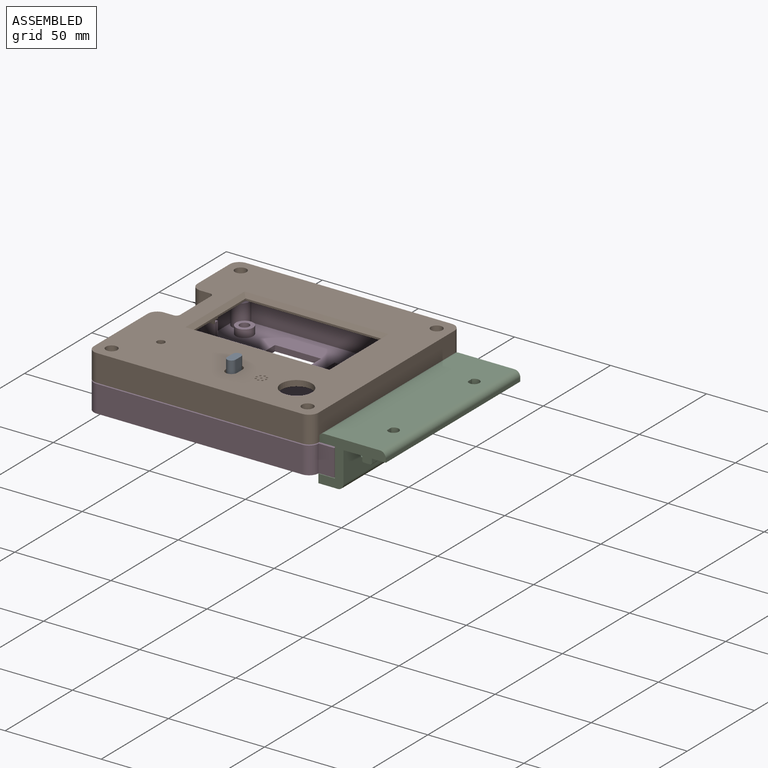
[diagram: assembled view]
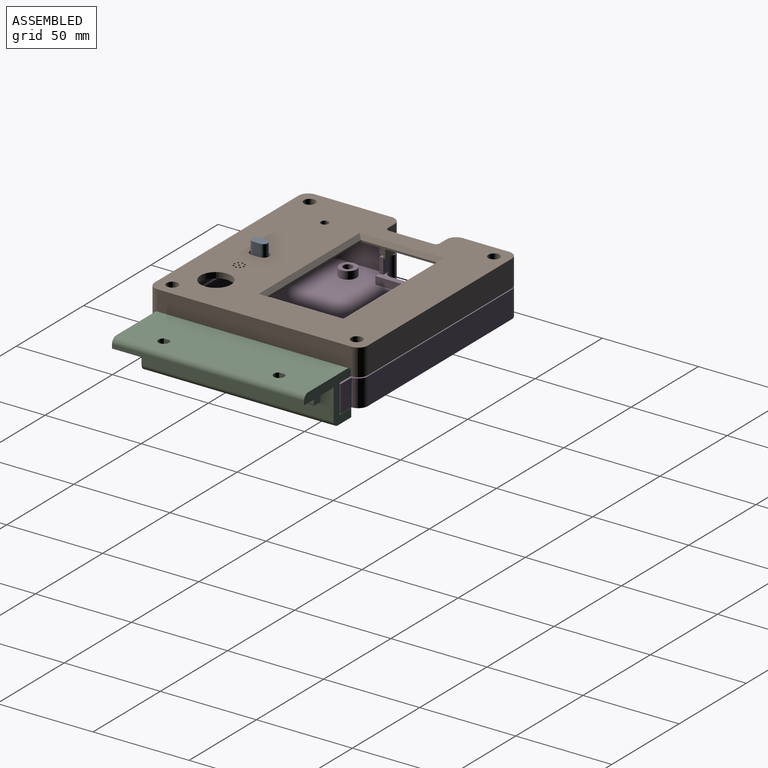
[diagram: assembled view, second angle]
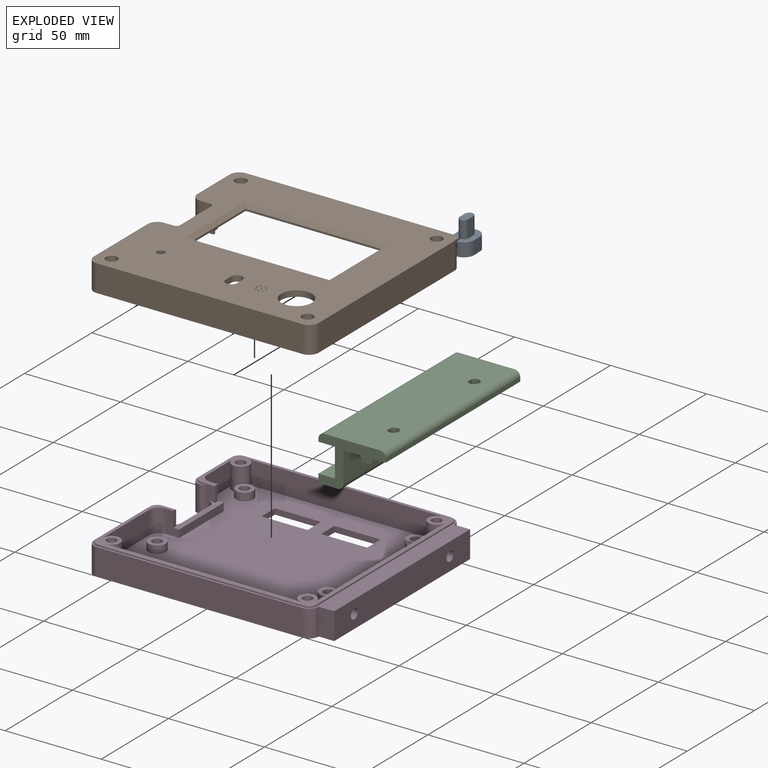
[diagram: exploded view]
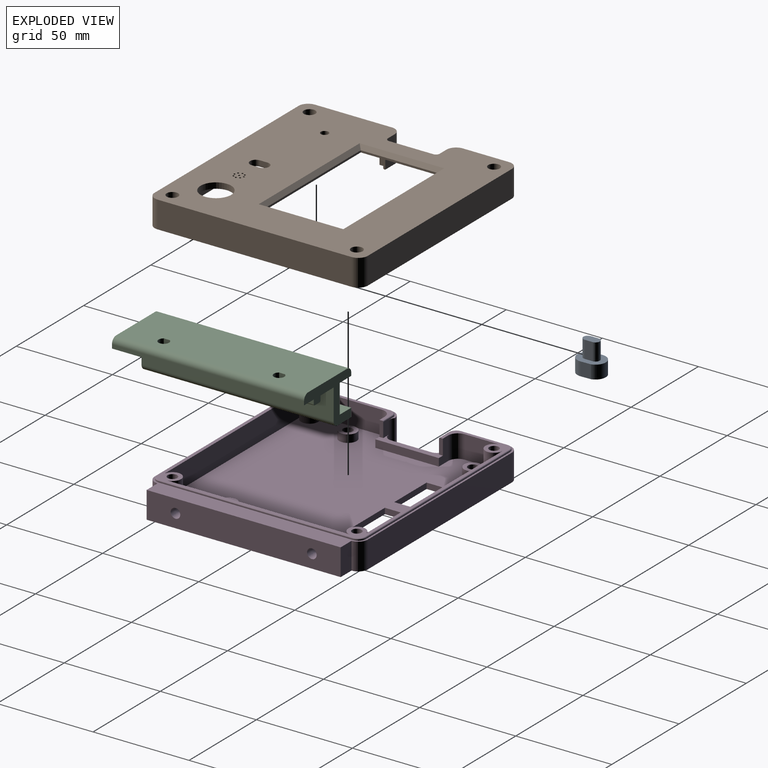
[diagram: exploded view, second angle]
ASSEMBLY  parts=4 mates=3
PART A: 11 faces, bbox 10.7x14.8x16 mm
  f0: plane 9x4mm, normal (-1,0,0), area 36mm2, adj f1,f3,f4,f9
  f1: cylinder r=2.25mm len=9mm, axis (0,0,-1), area 63.6mm2, adj f0,f2,f4,f9
  f2: plane 9x4mm, normal (1,0,0), area 36mm2, adj f1,f3,f4,f9
  f3: cylinder r=2.25mm len=9mm, axis (0,0,-1), area 63.6mm2, adj f0,f2,f4,f9
  f4: plane 8.5x4.5mm, normal (0,0,1), area 33.9mm2, adj f0,f1,f2,f3
  f5: plane 7x5.07mm, normal (1,0.03,0), area 35.5mm2, adj f6,f8,f9,f10
  f6: cylinder r=5.38mm len=10.57mm, axis (0,0,-1), area 108mm2, adj f5,f7,f9,f10
  f7: plane 7x5.45mm, normal (-1,-0.03,0), area 38.2mm2, adj f6,f8,f9,f10
  f8: cylinder r=5.38mm len=10.57mm, axis (0,0,-1), area 110.5mm2, adj f5,f7,f9,f10
  f9: plane 14.75x10.75mm, normal (0,0,1), area 99.1mm2, adj f0,f1,f2,f3,f5,f6,f7,f8
  f10: plane 14.75x10.75mm, normal (0,0,-1), area 133mm2, adj f5,f6,f7,f8
PART B: 108 faces, bbox 117.5x111.5x14 mm
  f0: plane 9.5x5mm, normal (0,1,0), area 41mm2, adj f2,f11,f12,f35,f56,f107
  f1: plane 23x6mm, normal (-1,0,0), area 138mm2, adj f36,f105,f106,f107
  f2: plane 33x3mm, normal (1,0,0), area 99mm2, adj f0,f8,f56,f107
  f3: plane 2x2mm, normal (0,0,-1), area 0.9mm2, adj f10,f11,f105
  f4: cylinder r=1.75mm len=5mm, axis (0,0,1), area 55mm2, adj f89,f103
  f5: cylinder r=1.75mm len=5mm, axis (0,0,1), area 55mm2, adj f91,f101
  f6: cylinder r=1.75mm len=5mm, axis (0,0,1), area 55mm2, adj f93,f99
  f7: cylinder r=1.75mm len=5mm, axis (0,0,1), area 55mm2, adj f95,f97
  f8: plane 9.5x5mm, normal (0,-1,0), area 41mm2, adj f2,f22,f23,f35,f56,f107
  f9: cylinder r=5mm len=14mm, axis (0,0,1), area 110mm2, adj f10,f34,f36,f74
  f10: plane 14x7mm, normal (0,-1,0), area 82mm2, adj f3,f9,f11,f36,f74,f105
  f11: plane 8x5mm, normal (1,0,0), area 24.9mm2, adj f0,f3,f10,f35,f62,f74,f75,f105
  f12: cylinder r=5mm len=9.5mm, axis (0,0,1), area 74.6mm2, adj f0,f13,f35,f56
  f13: plane 18.5x9.5mm, normal (1,0,0), area 175.8mm2, adj f12,f14,f35,f56,f94
  f14: cylinder r=4.5mm len=4.5mm, axis (0,0,1), area 31.8mm2, adj f13,f15,f35,f95
  f15: plane 102x9.5mm, normal (0,-1,0), area 969mm2, adj f14,f16,f35,f56,f92,f94
  f16: cylinder r=4.5mm len=4.5mm, axis (0,0,1), area 31.8mm2, adj f15,f17,f35,f93
  f17: plane 96x9.5mm, normal (-1,0,0), area 912mm2, adj f16,f18,f35,f56,f90,f92
  f18: cylinder r=4.5mm len=4.5mm, axis (0,0,1), area 31.8mm2, adj f17,f19,f35,f91
  f19: plane 102x9.5mm, normal (0,1,0), area 969mm2, adj f18,f20,f35,f56,f88,f90
  f20: cylinder r=4.5mm len=4.5mm, axis (0,0,1), area 31.8mm2, adj f19,f21,f35,f89
  f21: plane 34.5x9.5mm, normal (1,0,0), area 327.7mm2, adj f20,f22,f35,f56,f88
  f22: cylinder r=5mm len=9.5mm, axis (0,0,1), area 74.6mm2, adj f8,f21,f35,f56
  f23: plane 8x5mm, normal (1,0,0), area 24.9mm2, adj f8,f24,f35,f61,f74,f87,f96,f106
  f24: plane 14x7mm, normal (0,1,0), area 82mm2, adj f23,f25,f36,f74,f96,f106
  f25: cylinder r=5mm len=14mm, axis (0,0,1), area 110mm2, adj f24,f26,f36,f74
  f26: plane 40x14mm, normal (-1,0,0), area 560mm2, adj f25,f27,f36,f74
  f27: cylinder r=5mm len=14mm, axis (0,0,1), area 110mm2, adj f26,f28,f36,f74
  f28: plane 107x14mm, normal (0,-1,0), area 1498mm2, adj f27,f29,f36,f74
  f29: cylinder r=5mm len=14mm, axis (0,0,1), area 110mm2, adj f28,f30,f36,f74
  f30: plane 101x14mm, normal (1,0,0), area 1414mm2, adj f29,f31,f36,f74
  f31: cylinder r=5mm len=14mm, axis (0,0,1), area 110mm2, adj f30,f32,f36,f74
  f32: plane 107x14mm, normal (0,1,0), area 1498mm2, adj f31,f33,f36,f74
  f33: cylinder r=5mm len=14mm, axis (0,0,1), area 110mm2, adj f32,f34,f36,f74
  f34: plane 24x14mm, normal (-1,0,0), area 336mm2, adj f9,f33,f36,f74
  f35: plane 115x109mm, normal (0,0,-1), area 865.5mm2, adj f0,f8,f11,f12,f13,f14,f15,f16
  f36: plane 117x111mm, normal (0,0,1), area 8946.5mm2, adj f1,f9,f10,f24,f25,f26,f27,f28
  f37: plane 71x1mm, normal (0,1,0), area 71mm2, adj f38,f55,f56,f59
  f38: plane 40x1mm, normal (1,0,0), area 40mm2, adj f37,f39,f56,f57
  f39: plane 71x1mm, normal (0,-1,0), area 71mm2, adj f38,f55,f56,f58
  f40: cylinder r=3mm len=6mm, axis (0,0,1), area 28.3mm2, adj f36,f41,f43,f56
  f41: plane 4x3mm, normal (1,0,0), area 12mm2, adj f36,f40,f42,f56
  f42: cylinder r=3mm len=6mm, axis (0,0,1), area 28.3mm2, adj f36,f41,f43,f56
  f43: plane 4x3mm, normal (-1,0,0), area 12mm2, adj f36,f40,f42,f56
  f44: cylinder r=0.5mm len=3mm, axis (0,0,1), area 9.4mm2, adj f36,f56
  f45: cylinder r=0.5mm len=3mm, axis (0,0,1), area 9.4mm2, adj f36,f56
  f46: cylinder r=0.5mm len=3mm, axis (0,0,1), area 9.4mm2, adj f36,f56
  f47: cylinder r=0.5mm len=3mm, axis (0,0,1), area 9.4mm2, adj f36,f56
  f48: cylinder r=0.5mm len=3mm, axis (0,0,1), area 9.4mm2, adj f36,f56
  f49: cylinder r=0.5mm len=3mm, axis (0,0,1), area 9.4mm2, adj f36,f56
  f50: cylinder r=0.5mm len=3mm, axis (0,0,1), area 9.4mm2, adj f36,f56
  f51: cylinder r=0.5mm len=3mm, axis (0,0,1), area 9.4mm2, adj f36,f56
  f52: cylinder r=0.5mm len=3mm, axis (0,0,1), area 9.4mm2, adj f36,f56
  f53: cylinder r=2mm len=4mm, axis (0,0,1), area 37.7mm2, adj f36,f56
  f54: cylinder r=8mm len=16mm, axis (0,0,1), area 150.8mm2, adj f36,f56
  f55: plane 40x1mm, normal (-1,0,0), area 40mm2, adj f37,f39,f56,f60
  f56: plane 111x105mm, normal (0,0,-1), area 7929.4mm2, adj f0,f2,f8,f12,f13,f15,f17,f19
  f57: plane 44x2mm, normal (0.71,0,0.71), area 118.8mm2, adj f36,f38,f58,f59
  f58: plane 75x2mm, normal (0,-0.71,0.71), area 206.5mm2, adj f36,f39,f57,f60
  f59: plane 75x2mm, normal (0,0.71,0.71), area 206.5mm2, adj f36,f37,f57,f60
  f60: plane 44x2mm, normal (-0.71,0,0.71), area 118.8mm2, adj f36,f55,f58,f59
  f61: plane 7x1mm, normal (0,-1,0), area 7mm2, adj f23,f35,f63,f87
  f62: plane 7x1mm, normal (0,1,0), area 7mm2, adj f11,f35,f64,f75
  f63: cylinder r=4mm len=4mm, axis (0,0,1), area 6.3mm2, adj f35,f61,f73,f86
  f64: cylinder r=4mm len=4mm, axis (0,0,1), area 6.3mm2, adj f35,f62,f65,f76
  f65: plane 24x1mm, normal (1,0,0), area 24mm2, adj f35,f64,f66,f77
  f66: cylinder r=4mm len=4mm, axis (0,0,1), area 6.3mm2, adj f35,f65,f67,f78
  f67: plane 107x1mm, normal (0,-1,0), area 107mm2, adj f35,f66,f68,f79
  f68: cylinder r=4mm len=4mm, axis (0,0,1), area 6.3mm2, adj f35,f67,f69,f80
  f69: plane 101x1mm, normal (-1,0,0), area 101mm2, adj f35,f68,f70,f81
  f70: cylinder r=4mm len=4mm, axis (0,0,1), area 6.3mm2, adj f35,f69,f71,f82
  f71: plane 107x1mm, normal (0,1,0), area 107mm2, adj f35,f70,f72,f83
  f72: cylinder r=4mm len=4mm, axis (0,0,1), area 6.3mm2, adj f35,f71,f73,f84
  f73: plane 40x1mm, normal (1,0,0), area 40mm2, adj f35,f63,f72,f85
  f74: plane 117x111mm, normal (0,0,-1), area 218.9mm2, adj f9,f10,f11,f23,f24,f25,f26,f27
  f75: cylinder r=0.5mm len=7mm, axis (1,0,0), area 5.5mm2, adj f11,f62,f74,f76
  f76: torus R=4.5mm, axis (0,0,1), area 5.2mm2, adj f64,f74,f75,f77
  f77: cylinder r=0.5mm len=24mm, axis (0,-1,0), area 18.8mm2, adj f65,f74,f76,f78
  f78: torus R=4.5mm, axis (0,0,1), area 5.2mm2, adj f66,f74,f77,f79
  f79: cylinder r=0.5mm len=107mm, axis (-1,0,0), area 84mm2, adj f67,f74,f78,f80
  f80: torus R=4.5mm, axis (0,0,1), area 5.2mm2, adj f68,f74,f79,f81
  f81: cylinder r=0.5mm len=101mm, axis (0,1,0), area 79.3mm2, adj f69,f74,f80,f82
  f82: torus R=4.5mm, axis (0,0,1), area 5.2mm2, adj f70,f74,f81,f83
  f83: cylinder r=0.5mm len=107mm, axis (1,0,0), area 84mm2, adj f71,f74,f82,f84
  f84: torus R=4.5mm, axis (0,0,1), area 5.2mm2, adj f72,f74,f83,f85
  f85: cylinder r=0.5mm len=40mm, axis (0,-1,0), area 31.4mm2, adj f73,f74,f84,f86
  f86: torus R=4.5mm, axis (0,0,1), area 5.2mm2, adj f63,f74,f85,f87
  f87: cylinder r=0.5mm len=7mm, axis (-1,0,0), area 5.5mm2, adj f23,f61,f74,f86
  f88: cylinder r=4.5mm len=9mm, axis (0,0,1), area 106mm2, adj f19,f21,f56,f89
  f89: plane 9x9mm, normal (0,0,-1), area 54mm2, adj f4,f20,f88
  f90: cylinder r=4.5mm len=9mm, axis (0,0,1), area 106mm2, adj f17,f19,f56,f91
  f91: plane 9x9mm, normal (0,0,-1), area 54mm2, adj f5,f18,f90
  f92: cylinder r=4.5mm len=9mm, axis (0,0,1), area 106mm2, adj f15,f17,f56,f93
  f93: plane 9x9mm, normal (0,0,-1), area 54mm2, adj f6,f16,f92
  f94: cylinder r=4.5mm len=9mm, axis (0,0,1), area 106mm2, adj f13,f15,f56,f95
  f95: plane 9x9mm, normal (0,0,-1), area 54mm2, adj f7,f14,f94
  f96: plane 2x2mm, normal (0,0,-1), area 0.9mm2, adj f23,f24,f106
  f97: plane 6x6mm, normal (0,0,1), area 18.7mm2, adj f7,f98
  f98: cylinder r=3mm len=6mm, axis (0,0,1), area 56.5mm2, adj f36,f97
  f99: plane 6x6mm, normal (0,0,1), area 18.7mm2, adj f6,f100
  f100: cylinder r=3mm len=6mm, axis (0,0,1), area 56.5mm2, adj f36,f99
  f101: plane 6x6mm, normal (0,0,1), area 18.7mm2, adj f5,f102
  f102: cylinder r=3mm len=6mm, axis (0,0,1), area 56.5mm2, adj f36,f101
  f103: plane 6x6mm, normal (0,0,1), area 18.7mm2, adj f4,f104
  f104: cylinder r=3mm len=6mm, axis (0,0,1), area 56.5mm2, adj f36,f103
  f105: cylinder r=2mm len=8mm, axis (0,0,1), area 25.1mm2, adj f1,f3,f10,f11,f36
  f106: cylinder r=2mm len=8mm, axis (0,0,-1), area 25.1mm2, adj f1,f23,f24,f36,f96
  f107: plane 33x1mm, normal (0,0,-1), area 33mm2, adj f0,f1,f2,f8,f11,f23
PART C: 40 faces, bbox 35.1x100x24 mm
  f0: plane 100x22mm, normal (0,0,-1), area 1854.6mm2, adj f4,f5,f10,f11,f14,f15,f16,f18
  f1: plane 100x8.6mm, normal (0,0,1), area 860mm2, adj f2,f9,f10,f11
  f2: plane 100x4.5mm, normal (-1,0,0), area 450mm2, adj f1,f3,f10,f11
  f3: plane 100x10.1mm, normal (0,0,-1), area 1010mm2, adj f2,f10,f11,f37
  f4: plane 100x16mm, normal (1,0,0), area 1580.8mm2, adj f0,f10,f11,f12,f13,f37
  f5: plane 100x2mm, normal (1,0,0), area 200mm2, adj f0,f10,f11,f38
  f6: plane 100x29.1mm, normal (0,0,1), area 2864.6mm2, adj f10,f11,f27,f28,f29,f30,f38,f39
  f7: plane 100x1.5mm, normal (-1,0,0), area 150mm2, adj f8,f10,f11,f39
  f8: plane 100x8.6mm, normal (0,0,-1), area 860mm2, adj f7,f9,f10,f11
  f9: plane 100x15mm, normal (-1,0,0), area 1480.8mm2, adj f1,f8,f10,f11,f12,f13
  f10: plane 35.1x24mm, normal (0,-1,0), area 304.4mm2, adj f0,f1,f2,f3,f4,f5,f6,f7
  f11: plane 35.1x24mm, normal (0,1,0), area 304.4mm2, adj f0,f1,f2,f3,f4,f5,f6,f7
  f12: cylinder r=1.75mm len=4.5mm, axis (1,0,0), area 49.5mm2, adj f4,f9
  f13: cylinder r=1.75mm len=4.5mm, axis (1,0,0), area 49.5mm2, adj f4,f9
  f14: plane 10x2.5mm, normal (1,0,0), area 25mm2, adj f0,f11,f15,f36
  f15: plane 5x3mm, normal (0,-1,0), area 14.7mm2, adj f0,f14,f16,f17,f31,f36
  f16: plane 10x2.5mm, normal (-1,0,0), area 25mm2, adj f0,f11,f15,f31
  f17: plane 10x4mm, normal (0,0,-1), area 40mm2, adj f11,f15,f31,f36
  f18: plane 5x3mm, normal (0,1,0), area 14.7mm2, adj f0,f19,f20,f21,f33,f34
  f19: plane 10x2.5mm, normal (1,0,0), area 25mm2, adj f0,f10,f18,f34
  f20: plane 10x2.5mm, normal (-1,0,0), area 25mm2, adj f0,f10,f18,f33
  f21: plane 10x4mm, normal (0,0,-1), area 40mm2, adj f10,f18,f33,f34
  f22: plane 40x2.5mm, normal (1,0,0), area 100mm2, adj f0,f23,f25,f35
  f23: plane 5x3mm, normal (0,-1,0), area 14.7mm2, adj f0,f22,f24,f26,f32,f35
  f24: plane 40x2.5mm, normal (-1,0,0), area 100mm2, adj f0,f23,f25,f32
  f25: plane 5x3mm, normal (0,1,0), area 14.7mm2, adj f0,f22,f24,f26,f32,f35
  f26: plane 40x4mm, normal (0,0,-1), area 160mm2, adj f23,f25,f32,f35
  f27: cylinder r=2.75mm len=5.5mm, axis (0,0,-1), area 69.5mm2, adj f0,f6,f28
  f28: plane 5x3.16mm, normal (1,0,0), area 15.8mm2, adj f0,f6,f27
  f29: cylinder r=2.75mm len=5.5mm, axis (0,0,-1), area 69.5mm2, adj f0,f6,f30
  f30: plane 5x3.16mm, normal (1,0,0), area 15.8mm2, adj f0,f6,f29
  f31: plane 10x0.5mm, normal (-0.71,0,-0.71), area 7.1mm2, adj f11,f15,f16,f17
  f32: plane 40x0.5mm, normal (-0.71,0,-0.71), area 28.3mm2, adj f23,f24,f25,f26
  f33: plane 10x0.5mm, normal (-0.71,0,-0.71), area 7.1mm2, adj f10,f18,f20,f21
  f34: plane 10x0.5mm, normal (0.71,0,-0.71), area 7.1mm2, adj f10,f18,f19,f21
  f35: plane 40x0.5mm, normal (0.71,0,-0.71), area 28.3mm2, adj f22,f23,f25,f26
  f36: plane 10x0.5mm, normal (0.71,0,-0.71), area 7.1mm2, adj f11,f14,f15,f17
  f37: cylinder r=3mm len=100mm, axis (0,-1,0), area 471.2mm2, adj f3,f4,f10,f11
  f38: cylinder r=3mm len=100mm, axis (0,-1,0), area 471.2mm2, adj f5,f6,f10,f11
  f39: cylinder r=3mm len=100mm, axis (0,1,0), area 471.2mm2, adj f6,f7,f10,f11
PART D: 92 faces, bbox 125.1x111x15 mm
  f0: cylinder r=4.5mm len=9mm, axis (0,0,-1), area 103.2mm2, adj f1,f57,f91
  f1: plane 9x8mm, normal (0,0,1), area 40.1mm2, adj f0,f37,f91
  f2: plane 18.5x12mm, normal (1,0,0), area 222mm2, adj f3,f32,f34,f57
  f3: cylinder r=4.5mm len=12mm, axis (0,0,-1), area 254.5mm2, adj f2,f4,f34,f57
  f4: plane 102x12mm, normal (0,-1,0), area 1224mm2, adj f3,f5,f34,f57
  f5: cylinder r=4.5mm len=12mm, axis (0,0,-1), area 254.5mm2, adj f4,f6,f34,f57
  f6: plane 96x12mm, normal (-1,0,0), area 1112.7mm2, adj f5,f7,f34,f57,f87,f88
  f7: cylinder r=4.5mm len=12mm, axis (0,0,-1), area 254.5mm2, adj f6,f8,f34,f57
  f8: plane 102x12mm, normal (0,1,0), area 1224mm2, adj f7,f9,f34,f57
  f9: cylinder r=4.5mm len=12mm, axis (0,0,-1), area 254.5mm2, adj f8,f10,f34,f57
  f10: plane 34.5x12mm, normal (1,0,0), area 414mm2, adj f9,f11,f34,f57
  f11: cylinder r=5mm len=12mm, axis (0,0,-1), area 94.2mm2, adj f10,f12,f34,f57
  f12: plane 12x7mm, normal (0,-1,0), area 60mm2, adj f11,f13,f34,f47,f48,f57
  f13: plane 8x2mm, normal (1,0,0), area 15.9mm2, adj f12,f14,f34,f48,f85
  f14: plane 7.5x7mm, normal (0,1,0), area 31.5mm2, adj f13,f15,f48,f70,f72,f85
  f15: cylinder r=4mm len=4mm, axis (0,0,-1), area 3.1mm2, adj f14,f16,f70,f84
  f16: plane 40x0.5mm, normal (-1,0,0), area 20mm2, adj f15,f17,f70,f83
  f17: cylinder r=4mm len=4mm, axis (0,0,-1), area 3.1mm2, adj f16,f18,f70,f82
  f18: plane 107x0.5mm, normal (0,-1,0), area 53.5mm2, adj f17,f19,f70,f81
  f19: cylinder r=4mm len=4mm, axis (0,0,-1), area 3.1mm2, adj f18,f20,f70,f80
  f20: plane 101x0.5mm, normal (1,0,0), area 50.5mm2, adj f19,f21,f70,f79
  f21: cylinder r=4mm len=4mm, axis (0,0,-1), area 3.1mm2, adj f20,f22,f70,f78
  f22: plane 107x0.5mm, normal (0,1,0), area 53.5mm2, adj f21,f23,f70,f77
  f23: cylinder r=4mm len=4mm, axis (0,0,-1), area 3.1mm2, adj f22,f24,f70,f76
  f24: plane 24x0.5mm, normal (-1,0,0), area 12mm2, adj f23,f25,f70,f75
  f25: cylinder r=4mm len=4mm, axis (0,0,-1), area 3.1mm2, adj f24,f26,f70,f74
  f26: plane 7.5x7mm, normal (0,-1,0), area 31.5mm2, adj f25,f27,f48,f70,f71,f73
  f27: plane 8x2mm, normal (1,0,0), area 15.9mm2, adj f26,f28,f34,f48,f73
  f28: plane 12x7mm, normal (0,1,0), area 60mm2, adj f27,f32,f34,f47,f48,f57
  f29: cylinder r=2.5mm len=15mm, axis (0,0,-1), area 235.6mm2, adj f34,f35
  f30: cylinder r=2.5mm len=15mm, axis (0,0,-1), area 235.6mm2, adj f34,f35
  f31: cylinder r=2.5mm len=15mm, axis (0,0,-1), area 235.6mm2, adj f34,f35
  f32: cylinder r=5mm len=12mm, axis (0,0,-1), area 94.2mm2, adj f2,f28,f34,f57
  f33: cylinder r=2.5mm len=15mm, axis (0,0,-1), area 235.6mm2, adj f34,f35
  f34: plane 114x108mm, normal (0,0,1), area 827.3mm2, adj f2,f3,f4,f5,f6,f7,f8,f9
  f35: plane 125.1x111mm, normal (0,0,-1), area 12806.6mm2, adj f29,f30,f31,f33,f36,f37,f38,f42
  f36: plane 21x7mm, normal (-1,0,0), area 147mm2, adj f35,f48,f58,f59
  f37: cylinder r=2.5mm len=7mm, axis (0,0,-1), area 110mm2, adj f1,f35
  f38: cylinder r=2.5mm len=7mm, axis (0,0,-1), area 110mm2, adj f35,f40
  f39: cylinder r=4.5mm len=9mm, axis (0,0,-1), area 113.1mm2, adj f40,f57
  f40: plane 9x9mm, normal (0,0,1), area 44mm2, adj f38,f39
  f41: cylinder r=4.5mm len=9mm, axis (0,0,-1), area 113.1mm2, adj f43,f57
  f42: cylinder r=2.5mm len=7mm, axis (0,0,-1), area 110mm2, adj f35,f43
  f43: plane 9x9mm, normal (0,0,1), area 44mm2, adj f41,f42
  f44: cylinder r=2.5mm len=7mm, axis (0,0,-1), area 110mm2, adj f35,f46
  f45: cylinder r=4.5mm len=9mm, axis (0,0,-1), area 113.1mm2, adj f46,f57
  f46: plane 9x9mm, normal (0,0,1), area 44mm2, adj f44,f45
  f47: plane 33x4mm, normal (1,0,0), area 132mm2, adj f12,f28,f48,f57
  f48: plane 33x7mm, normal (0,0,1), area 105.9mm2, adj f12,f13,f14,f26,f27,f28,f36,f47
  f49: plane 24x3mm, normal (0,1,0), area 72mm2, adj f35,f50,f56,f57
  f50: plane 10x3mm, normal (1,0,0), area 30mm2, adj f35,f49,f51,f57
  f51: plane 24x3mm, normal (0,-1,0), area 72mm2, adj f35,f50,f56,f57
  f52: plane 24x3mm, normal (0,1,0), area 72mm2, adj f35,f53,f55,f57
  f53: plane 10x3mm, normal (1,0,0), area 30mm2, adj f35,f52,f54,f57
  f54: plane 24x3mm, normal (0,-1,0), area 72mm2, adj f35,f53,f55,f57
  f55: plane 10x3mm, normal (-1,0,0), area 30mm2, adj f35,f52,f54,f57
  f56: plane 10x3mm, normal (-1,0,0), area 30mm2, adj f35,f49,f51,f57
  f57: plane 111x105mm, normal (0,0,1), area 10241.9mm2, adj f0,f2,f3,f4,f5,f6,f7,f8
  f58: cylinder r=4mm len=7mm, axis (0,0,-1), area 44mm2, adj f35,f36,f48,f72
  f59: cylinder r=4mm len=7mm, axis (0,0,-1), area 44mm2, adj f35,f36,f48,f71
  f60: cylinder r=5mm len=14mm, axis (0,0,-1), area 110mm2, adj f35,f61,f70,f72
  f61: plane 40x14mm, normal (-1,0,0), area 560mm2, adj f35,f60,f62,f70
  f62: cylinder r=5mm len=14mm, axis (0,0,-1), area 110mm2, adj f35,f61,f63,f70
  f63: plane 107x14mm, normal (0,-1,0), area 1498mm2, adj f35,f62,f64,f70
  f64: cylinder r=5mm len=14mm, axis (0,0,-1), area 110mm2, adj f35,f63,f70,f89
  f65: cylinder r=5mm len=14mm, axis (0,0,-1), area 110mm2, adj f35,f66,f70,f86
  f66: plane 107x14mm, normal (0,1,0), area 1498mm2, adj f35,f65,f67,f70
  f67: cylinder r=5mm len=14mm, axis (0,0,-1), area 110mm2, adj f35,f66,f68,f70
  f68: plane 24x14mm, normal (-1,0,0), area 336mm2, adj f35,f67,f69,f70
  f69: cylinder r=5mm len=14mm, axis (0,0,-1), area 110mm2, adj f35,f68,f70,f71
  f70: plane 125.1x111mm, normal (0,0,1), area 1241.4mm2, adj f14,f15,f16,f17,f18,f19,f20,f21
  f71: cylinder r=5mm len=14mm, axis (0,0,-1), area 45mm2, adj f26,f35,f59,f69,f70
  f72: cylinder r=5mm len=14mm, axis (0,0,-1), area 45mm2, adj f14,f35,f58,f60,f70
  f73: cylinder r=0.5mm len=7mm, axis (-1,0,0), area 5.5mm2, adj f26,f27,f34,f74
  f74: torus R=3.5mm, axis (0,0,1), area 4.7mm2, adj f25,f34,f73,f75
  f75: cylinder r=0.5mm len=24mm, axis (0,1,0), area 18.8mm2, adj f24,f34,f74,f76
  f76: torus R=3.5mm, axis (0,0,1), area 4.7mm2, adj f23,f34,f75,f77
  f77: cylinder r=0.5mm len=107mm, axis (1,0,0), area 84mm2, adj f22,f34,f76,f78
  f78: torus R=3.5mm, axis (0,0,1), area 4.7mm2, adj f21,f34,f77,f79
  f79: cylinder r=0.5mm len=101mm, axis (0,-1,0), area 79.3mm2, adj f20,f34,f78,f80
  f80: torus R=3.5mm, axis (0,0,1), area 4.7mm2, adj f19,f34,f79,f81
  f81: cylinder r=0.5mm len=107mm, axis (-1,0,0), area 84mm2, adj f18,f34,f80,f82
  f82: torus R=3.5mm, axis (0,0,1), area 4.7mm2, adj f17,f34,f81,f83
  f83: cylinder r=0.5mm len=40mm, axis (0,1,0), area 31.4mm2, adj f16,f34,f82,f84
  f84: torus R=3.5mm, axis (0,0,1), area 4.7mm2, adj f15,f34,f83,f85
  f85: cylinder r=0.5mm len=7mm, axis (1,0,0), area 5.5mm2, adj f13,f14,f34,f84
  f86: plane 14x8.1mm, normal (0,1,0), area 113.4mm2, adj f35,f65,f70,f90
  f87: cylinder r=2.5mm len=11.1mm, axis (-1,0,0), area 174.4mm2, adj f6,f90
  f88: cylinder r=2.5mm len=11.1mm, axis (-1,0,0), area 174.4mm2, adj f6,f90
  f89: plane 14x8.1mm, normal (0,-1,0), area 113.4mm2, adj f35,f64,f70,f90
  f90: plane 101x14mm, normal (1,0,0), area 1374.7mm2, adj f35,f70,f86,f87,f88,f89
  f91: cylinder r=2.5mm len=5.66mm, axis (1,0,0), area 10.4mm2, adj f0,f1
PLACE A t=(0,0,-31.5)mm
PLACE B t=(0,0,3.5)mm
PLACE C t=(-0.5,0,0)mm
PLACE D at identity fixed
MATE fastened A.f1 <-> B.f40  axis (0,0,1) through (4,-37.5,25.5)mm
MATE fastened B.f27 <-> D.f17  axis (0,0,-1) through (-53.5,-50.5,14.5)mm
MATE fastened C.f12 <-> D.f88  axis (-1,0,0) through (66.6,-35.5,7)mm
